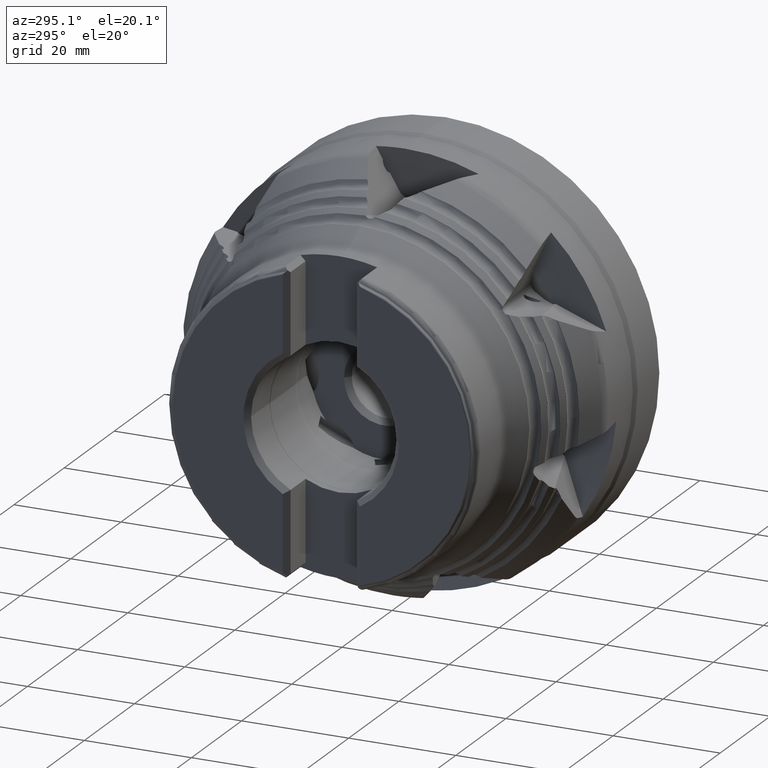
[diagram: clean part render]
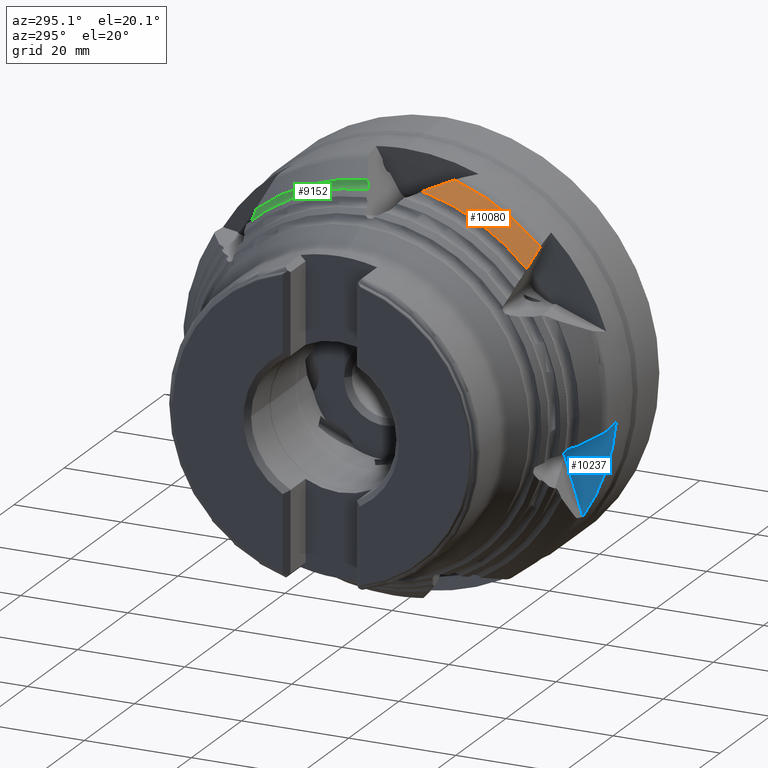
[diagram: same view with three faces highlighted in distinct colors, each labeled with its STEP entity id]
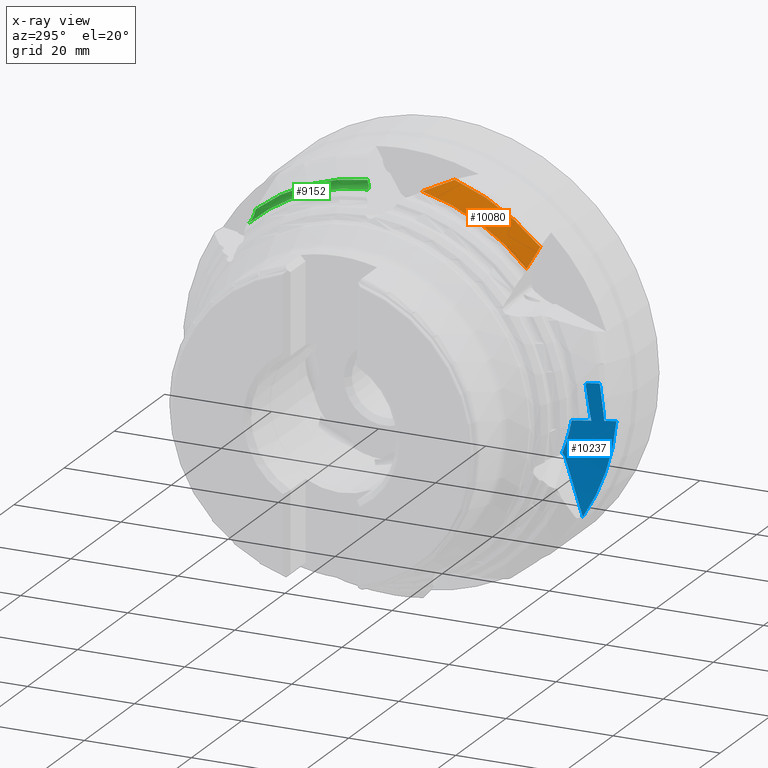
[diagram: x-ray of the same camera — body ghosted, the three highlighted faces saturated]
A machine part, auxiliary view with three faces highlighted in distinct colors.
The next image is the same camera in x-ray (body ghosted, the three faces saturated) — at least one of them is partly hidden behind the body in this view.
Their STEP definitions:

[orange] entity #10080 — the highlighted conical surface has half-angle 29.986 deg.
#84 = DIRECTION ( 'NONE',  ( 0.0000000000000000000, 0.0000000000000000000, -1.000000000000000000 ) ) ;
#95 = DIRECTION ( 'NONE',  ( 1.000000000000000000, -0.0000000000000000000, -0.0000000000000000000 ) ) ;
#96 = CARTESIAN_POINT ( 'NONE',  ( -19.75000000000000700, 0.0000000000000000000, 0.0000000000000000000 ) ) ;
#819 = CARTESIAN_POINT ( 'NONE',  ( -19.75000000000000400, -27.58003265146716000, 27.81905562916816500 ) ) ;
#1418 = ORIENTED_EDGE ( 'NONE', *, *, #9791, .F. ) ;
#1451 = ORIENTED_EDGE ( 'NONE', *, *, #9795, .T. ) ;
#1578 = ORIENTED_EDGE ( 'NONE', *, *, #7778, .F. ) ;
#4844 = EDGE_LOOP ( 'NONE', ( #1418, #8305, #1451, #1578 ) ) ;
#5798 = AXIS2_PLACEMENT_3D ( 'NONE', #11946, #11953, #11954 ) ;
#5802 = AXIS2_PLACEMENT_3D ( 'NONE', #11952, #11965, #11966 ) ;
#5929 = AXIS2_PLACEMENT_3D ( 'NONE', #96, #95, #84 ) ;
#6563 = CARTESIAN_POINT ( 'NONE',  ( -23.86015006379805600, -7.403215991136505600, 36.04942966323809400 ) ) ;
#6709 = CARTESIAN_POINT ( 'NONE',  ( -23.86015006379806600, -26.91248224293732600, 25.10153950616877300 ) ) ;
#6758 = CARTESIAN_POINT ( 'NONE',  ( -19.75000000000000400, -11.58782275345328100, 37.42032096320524200 ) ) ;
#7019 = VERTEX_POINT ( 'NONE', #6709 ) ;
#7205 = VERTEX_POINT ( 'NONE', #6563 ) ;
#7374 = VERTEX_POINT ( 'NONE', #6758 ) ;
#7778 = EDGE_CURVE ( 'NONE', #10555, #7019, #8044, .T. ) ;
#7802 = EDGE_CURVE ( 'NONE', #7374, #7205, #8057, .T. ) ;
#8044 = B_SPLINE_CURVE_WITH_KNOTS ( 'NONE', 3,
 ( #10351, #10461, #10425, #10451 ),
 .UNSPECIFIED., .F., .F.,
 ( 4, 4 ),
 ( 2.411546218608524900E-007, 0.004972549569596663000 ),
 .UNSPECIFIED. ) ;
#8057 = B_SPLINE_CURVE_WITH_KNOTS ( 'NONE', 3,
 ( #8822, #8767, #8720, #8790 ),
 .UNSPECIFIED., .F., .F.,
 ( 4, 4 ),
 ( 2.852776466389619600E-007, 0.006023873100405632500 ),
 .UNSPECIFIED. ) ;
#8305 = ORIENTED_EDGE ( 'NONE', *, *, #7802, .T. ) ;
#8720 = CARTESIAN_POINT ( 'NONE',  ( -22.53141329550126300, -8.827784818221108100, 36.53959895266671500 ) ) ;
#8767 = CARTESIAN_POINT ( 'NONE',  ( -21.15765343313340100, -10.21998675139884400, 36.99358093492305200 ) ) ;
#8790 = CARTESIAN_POINT ( 'NONE',  ( -23.86015006379805600, -7.403215991136505600, 36.04942966323809400 ) ) ;
#8822 = CARTESIAN_POINT ( 'NONE',  ( -19.75000000000000400, -11.58782275345328100, 37.42032096320524200 ) ) ;
#9791 = EDGE_CURVE ( 'NONE', #7374, #10555, #10958, .T. ) ;
#9795 = EDGE_CURVE ( 'NONE', #7205, #7019, #10963, .T. ) ;
#10080 = ADVANCED_FACE ( 'NONE', ( #11185 ), #11191, .T. ) ;
#10351 = CARTESIAN_POINT ( 'NONE',  ( -19.75000000000000400, -27.58003265146716000, 27.81905562916816500 ) ) ;
#10425 = CARTESIAN_POINT ( 'NONE',  ( -22.49496209051098500, -27.13884397067003100, 26.01378739927539000 ) ) ;
#10451 = CARTESIAN_POINT ( 'NONE',  ( -23.86015006379806600, -26.91248224293732600, 25.10153950616877300 ) ) ;
#10461 = CARTESIAN_POINT ( 'NONE',  ( -21.12458355822222700, -27.36110098582440700, 26.91919306142832700 ) ) ;
#10555 = VERTEX_POINT ( 'NONE', #819 ) ;
#10958 = CIRCLE ( 'NONE', #5798, 39.17343560571050200 ) ;
#10963 = CIRCLE ( 'NONE', #5802, 36.80175248620870600 ) ;
#11185 = FACE_OUTER_BOUND ( 'NONE', #4844, .T. ) ;
#11191 = CONICAL_SURFACE ( 'NONE', #5929, 39.17343560571050200, 0.5233591296218815800 ) ;
#11946 = CARTESIAN_POINT ( 'NONE',  ( -19.75000000000000700, 0.0000000000000000000, 0.0000000000000000000 ) ) ;
#11952 = CARTESIAN_POINT ( 'NONE',  ( -23.86015006379807000, 0.0000000000000000000, 0.0000000000000000000 ) ) ;
#11953 = DIRECTION ( 'NONE',  ( 1.000000000000000000, -0.0000000000000000000, -0.0000000000000000000 ) ) ;
#11954 = DIRECTION ( 'NONE',  ( 0.0000000000000000000, 0.0000000000000000000, -1.000000000000000000 ) ) ;
#11965 = DIRECTION ( 'NONE',  ( 1.000000000000000000, -0.0000000000000000000, -0.0000000000000000000 ) ) ;
#11966 = DIRECTION ( 'NONE',  ( 0.0000000000000000000, 0.0000000000000000000, -1.000000000000000000 ) ) ;

[blue] entity #10237 — the highlighted conical surface has half-angle 79.042 deg.
#588 = DIRECTION ( 'NONE',  ( 0.0000000000000000000, 0.0000000000000000000, 1.000000000000000000 ) ) ;
#589 = DIRECTION ( 'NONE',  ( -1.000000000000000000, 0.0000000000000000000, 0.0000000000000000000 ) ) ;
#590 = CARTESIAN_POINT ( 'NONE',  ( -13.02448214395804400, 0.0000000000000000000, 0.0000000000000000000 ) ) ;
#773 = CARTESIAN_POINT ( 'NONE',  ( -13.77643423833003800, -34.29959869290051700, -4.417358670342841800 ) ) ;
#820 = CARTESIAN_POINT ( 'NONE',  ( -13.15760050556952600, -29.06160355297153300, -11.85513599864433600 ) ) ;
#851 = CARTESIAN_POINT ( 'NONE',  ( -14.27498281250760900, -36.95437970158653200, -3.883290550801097300 ) ) ;
#855 = CARTESIAN_POINT ( 'NONE',  ( -14.07729255668942300, -36.05946085018911200, 2.362890575477805600 ) ) ;
#859 = CARTESIAN_POINT ( 'NONE',  ( -14.74297361145644000, -33.15292004178408500, -21.61167549504370200 ) ) ;
#866 = CARTESIAN_POINT ( 'NONE',  ( -14.22793209370539300, -36.81287012301073200, -2.741896255978092600 ) ) ;
#1011 = AXIS2_PLACEMENT_3D ( 'NONE', #590, #589, #588 ) ;
#1826 = CARTESIAN_POINT ( 'NONE',  ( -13.02448214395804800, -30.24973538759846600, -5.233315809483216600 ) ) ;
#1919 = CARTESIAN_POINT ( 'NONE',  ( -14.74297361145644000, -33.15292004178408500, -21.61167549504370200 ) ) ;
#1926 = CARTESIAN_POINT ( 'NONE',  ( -13.52397737000488600, -32.94991741642697700, -4.689021668062084200 ) ) ;
#1973 = CARTESIAN_POINT ( 'NONE',  ( -13.27309485430865400, -31.59999804057472200, -4.960965961377941500 ) ) ;
#2062 = CARTESIAN_POINT ( 'NONE',  ( -13.77643423833003800, -34.29959869290051700, -4.417358670342841800 ) ) ;
#2348 = VERTEX_POINT ( 'NONE', #2523 ) ;
#2478 = VERTEX_POINT ( 'NONE', #2520 ) ;
#2520 = CARTESIAN_POINT ( 'NONE',  ( -13.02448214395804300, -28.50013516981798700, -11.40948643382416300 ) ) ;
#2523 = CARTESIAN_POINT ( 'NONE',  ( -13.49811977225348900, -33.09808212211964900, 1.770465918649291900 ) ) ;
#2552 = B_SPLINE_CURVE_WITH_KNOTS ( 'NONE', 3,
 ( #10324, #10331, #10409, #10384 ),
 .UNSPECIFIED., .F., .F.,
 ( 4, 4 ),
 ( 2.127040790515733500E-005, 0.001648429250161663800 ),
 .UNSPECIFIED. ) ;
#2586 = B_SPLINE_CURVE_WITH_KNOTS ( 'NONE', 3,
 ( #8464, #8576, #8588, #8515 ),
 .UNSPECIFIED., .F., .F.,
 ( 4, 4 ),
 ( 0.005005773144576095700, 0.006157415878208439400 ),
 .UNSPECIFIED. ) ;
#2588 = B_SPLINE_CURVE_WITH_KNOTS ( 'NONE', 3,
 ( #8569, #8640, #8623, #8624 ),
 .UNSPECIFIED., .F., .F.,
 ( 4, 4 ),
 ( 0.001024325014583567800, 0.006186608032533345500 ),
 .UNSPECIFIED. ) ;
#2920 = CARTESIAN_POINT ( 'NONE',  ( -14.74297361145376300, -39.42990551906952100, -3.385731199631457000 ) ) ;
#2921 = CARTESIAN_POINT ( 'NONE',  ( -14.17765743232406100, -31.78157564317409700, -18.36861185009664900 ) ) ;
#2922 = CARTESIAN_POINT ( 'NONE',  ( -13.63903579503369900, -30.41571539305629200, -15.11894585858071200 ) ) ;
#2923 = CARTESIAN_POINT ( 'NONE',  ( -13.15760050556952600, -29.06160355297153300, -11.85513599864433600 ) ) ;
#2928 = CARTESIAN_POINT ( 'NONE',  ( -14.58655302210180700, -38.60479431882725300, -3.551508620386461900 ) ) ;
#2929 = CARTESIAN_POINT ( 'NONE',  ( -14.43052821812258600, -37.77962326144139400, -3.717356757625507300 ) ) ;
#2930 = CARTESIAN_POINT ( 'NONE',  ( -14.27498281250760900, -36.95437970158653200, -3.883290550801097300 ) ) ;
#3661 = CARTESIAN_POINT ( 'NONE',  ( -13.55799545217068000, -33.38624619555433500, 2.138345254129950600 ) ) ;
#3667 = CARTESIAN_POINT ( 'NONE',  ( -13.70994283081734900, -34.16270592516421800, 2.293663130348654500 ) ) ;
#3668 = CARTESIAN_POINT ( 'NONE',  ( -13.86198310472513900, -34.93915083502142200, 2.448964232729478900 ) ) ;
#3669 = CARTESIAN_POINT ( 'NONE',  ( -14.01409900351162500, -35.71558365515299700, 2.604251673997058700 ) ) ;
#3725 = CARTESIAN_POINT ( 'NONE',  ( -14.07729255668942300, -36.05946085018911200, 2.362890575477805600 ) ) ;
#3729 = CARTESIAN_POINT ( 'NONE',  ( -14.07595059452474800, -36.04733558688379000, 2.441929619133514700 ) ) ;
#3730 = CARTESIAN_POINT ( 'NONE',  ( -14.06831766956456600, -36.00278856593327200, 2.514261971994109500 ) ) ;
#3731 = CARTESIAN_POINT ( 'NONE',  ( -14.04477473638782700, -35.87452915700343700, 2.603497128787489100 ) ) ;
#3732 = CARTESIAN_POINT ( 'NONE',  ( -14.02905750019553500, -35.79193509414042000, 2.619522048059099300 ) ) ;
#3733 = CARTESIAN_POINT ( 'NONE',  ( -14.01409900351162500, -35.71558365515299700, 2.604251673997058700 ) ) ;
#3883 = CARTESIAN_POINT ( 'NONE',  ( -13.02448214395804300, -28.50013516981798700, -11.40948643382416300 ) ) ;
#3892 = CARTESIAN_POINT ( 'NONE',  ( -13.06842588183770500, -28.68285693743158800, -11.56375124406137900 ) ) ;
#3893 = CARTESIAN_POINT ( 'NONE',  ( -13.11280961394343700, -28.87002951100991800, -11.71227710975306700 ) ) ;
#3894 = CARTESIAN_POINT ( 'NONE',  ( -13.15760050556952600, -29.06160355297153300, -11.85513599864433600 ) ) ;
#4472 = ORIENTED_EDGE ( 'NONE', *, *, #7957, .F. ) ;
#4473 = ORIENTED_EDGE ( 'NONE', *, *, #9674, .T. ) ;
#4474 = ORIENTED_EDGE ( 'NONE', *, *, #7812, .T. ) ;
#4475 = ORIENTED_EDGE ( 'NONE', *, *, #7946, .T. ) ;
#4476 = ORIENTED_EDGE ( 'NONE', *, *, #7760, .F. ) ;
#4477 = ORIENTED_EDGE ( 'NONE', *, *, #7629, .F. ) ;
#4478 = ORIENTED_EDGE ( 'NONE', *, *, #7617, .T. ) ;
#4479 = ORIENTED_EDGE ( 'NONE', *, *, #9627, .F. ) ;
#4480 = ORIENTED_EDGE ( 'NONE', *, *, #9649, .T. ) ;
#4481 = ORIENTED_EDGE ( 'NONE', *, *, #7734, .F. ) ;
#4482 = ORIENTED_EDGE ( 'NONE', *, *, #7738, .F. ) ;
#4484 = ORIENTED_EDGE ( 'NONE', *, *, #7668, .F. ) ;
#4485 = ORIENTED_EDGE ( 'NONE', *, *, #7959, .T. ) ;
#4724 = EDGE_LOOP ( 'NONE', ( #4484, #4485, #4482, #4481, #4480, #4479, #4478, #4477, #4476, #4475, #4474, #4473, #4472 ) ) ;
#5114 = CIRCLE ( 'NONE', #5524, 39.57500000000001000 ) ;
#5183 = CIRCLE ( 'NONE', #5562, 30.69908932495415100 ) ;
#5524 = AXIS2_PLACEMENT_3D ( 'NONE', #8497, #8450, #8508 ) ;
#5562 = AXIS2_PLACEMENT_3D ( 'NONE', #8729, #8830, #8740 ) ;
#6030 = B_SPLINE_CURVE_WITH_KNOTS ( 'NONE', 3,
 ( #2062, #1926, #1973, #1826 ),
 .UNSPECIFIED., .F., .F.,
 ( 4, 4 ),
 ( 0.005322604038467463500, 0.009521719763578330400 ),
 .UNSPECIFIED. ) ;
#6040 = B_SPLINE_CURVE_WITH_KNOTS ( 'NONE', 3,
 ( #1919, #2921, #2922, #2923 ),
 .UNSPECIFIED., .F., .F.,
 ( 4, 4 ),
 ( 1.261559730348487700E-006, 0.01069902733394071900 ),
 .UNSPECIFIED. ) ;
#6042 = B_SPLINE_CURVE_WITH_KNOTS ( 'NONE', 3,
 ( #2920, #2928, #2929, #2930 ),
 .UNSPECIFIED., .F., .F.,
 ( 4, 4 ),
 ( 1.094497495789083800E-006, 0.002569126394225962300 ),
 .UNSPECIFIED. ) ;
#6085 = B_SPLINE_CURVE_WITH_KNOTS ( 'NONE', 3,
 ( #3661, #3667, #3668, #3669 ),
 .UNSPECIFIED., .F., .F.,
 ( 4, 4 ),
 ( 0.002834302171999550800, 0.005253168071601669800 ),
 .UNSPECIFIED. ) ;
#6090 = B_SPLINE_CURVE_WITH_KNOTS ( 'NONE', 3,
 ( #3725, #3729, #3730, #3731, #3732, #3733 ),
 .UNSPECIFIED., .F., .F.,
 ( 4, 2, 4 ),
 ( 0.0002141596756595487200, 0.0004507220710206366100, 0.0006872844663817245000 ),
 .UNSPECIFIED. ) ;
#6109 = B_SPLINE_CURVE_WITH_KNOTS ( 'NONE', 3,
 ( #3883, #3892, #3893, #3894 ),
 .UNSPECIFIED., .F., .F.,
 ( 4, 4 ),
 ( 2.759246602137219200E-017, 0.0007290890056114888500 ),
 .UNSPECIFIED. ) ;
#6440 = CARTESIAN_POINT ( 'NONE',  ( -14.74297361145376300, -39.42990551906952100, -3.385731199631457000 ) ) ;
#6505 = CARTESIAN_POINT ( 'NONE',  ( -13.55799545217068000, -33.38624619555433500, 2.138345254129950600 ) ) ;
#6757 = CARTESIAN_POINT ( 'NONE',  ( -14.01409900351162500, -35.71558365515299700, 2.604251673997058700 ) ) ;
#6760 = CARTESIAN_POINT ( 'NONE',  ( -13.02448214395804800, -30.24973538759846600, -5.233315809483216600 ) ) ;
#6780 = CARTESIAN_POINT ( 'NONE',  ( -13.66759250174636400, -33.90171496073549000, -2.843054393496436300 ) ) ;
#6880 = CARTESIAN_POINT ( 'NONE',  ( -13.55799545217068000, -33.38624619555433500, 2.138345254129950600 ) ) ;
#6936 = CARTESIAN_POINT ( 'NONE',  ( -13.58497904826015600, -33.57699883857317500, -1.316059790287869500 ) ) ;
#6949 = CARTESIAN_POINT ( 'NONE',  ( -13.66759250174636400, -33.90171496073549000, -2.843054393496436300 ) ) ;
#6952 = CARTESIAN_POINT ( 'NONE',  ( -13.50895163265000100, -33.19558500986373400, 0.9950723470244630100 ) ) ;
#6959 = CARTESIAN_POINT ( 'NONE',  ( -13.49692491181124000, -33.08732659730583900, 1.855999434570240000 ) ) ;
#6960 = CARTESIAN_POINT ( 'NONE',  ( -13.49811977225348900, -33.09808212211964900, 1.770465918649291900 ) ) ;
#6963 = CARTESIAN_POINT ( 'NONE',  ( -13.54170029152074400, -33.30297699969925400, 2.121688634138665400 ) ) ;
#6965 = CARTESIAN_POINT ( 'NONE',  ( -13.52613701258597900, -33.22528996748504700, 2.077347853959258000 ) ) ;
#6969 = CARTESIAN_POINT ( 'NONE',  ( -13.62180819039957500, -33.72817420802863400, -2.082722676804270400 ) ) ;
#6981 = CARTESIAN_POINT ( 'NONE',  ( -13.50351099966417200, -33.11626246864090500, 1.944577716662927000 ) ) ;
#6987 = CARTESIAN_POINT ( 'NONE',  ( -13.52856174768908600, -33.31072084680209100, 0.2226674977695846900 ) ) ;
#6990 = CARTESIAN_POINT ( 'NONE',  ( -13.49811977225348900, -33.09808212211964900, 1.770465918649291900 ) ) ;
#7038 = VERTEX_POINT ( 'NONE', #6505 ) ;
#7081 = VERTEX_POINT ( 'NONE', #6440 ) ;
#7346 = VERTEX_POINT ( 'NONE', #6780 ) ;
#7373 = VERTEX_POINT ( 'NONE', #6757 ) ;
#7375 = VERTEX_POINT ( 'NONE', #6760 ) ;
#7617 = EDGE_CURVE ( 'NONE', #7038, #2348, #10679, .T. ) ;
#7629 = EDGE_CURVE ( 'NONE', #7346, #2348, #10685, .T. ) ;
#7668 = EDGE_CURVE ( 'NONE', #7081, #10597, #5114, .T. ) ;
#7734 = EDGE_CURVE ( 'NONE', #10593, #10604, #2588, .T. ) ;
#7738 = EDGE_CURVE ( 'NONE', #10604, #10589, #2586, .T. ) ;
#7760 = EDGE_CURVE ( 'NONE', #10508, #7346, #2552, .T. ) ;
#7812 = EDGE_CURVE ( 'NONE', #7375, #2478, #5183, .T. ) ;
#7946 = EDGE_CURVE ( 'NONE', #10508, #7375, #6030, .T. ) ;
#7957 = EDGE_CURVE ( 'NONE', #10597, #10556, #6040, .T. ) ;
#7959 = EDGE_CURVE ( 'NONE', #7081, #10589, #6042, .T. ) ;
#8450 = DIRECTION ( 'NONE',  ( 1.000000000000000000, -0.0000000000000000000, -0.0000000000000000000 ) ) ;
#8464 = CARTESIAN_POINT ( 'NONE',  ( -14.22793209370539300, -36.81287012301073200, -2.741896255978092600 ) ) ;
#8497 = CARTESIAN_POINT ( 'NONE',  ( -14.74297361145644000, 0.0000000000000000000, 0.0000000000000000000 ) ) ;
#8508 = DIRECTION ( 'NONE',  ( 0.0000000000000000000, 0.0000000000000000000, -1.000000000000000000 ) ) ;
#8515 = CARTESIAN_POINT ( 'NONE',  ( -14.27498281250760900, -36.95437970158653200, -3.883290550801097300 ) ) ;
#8569 = CARTESIAN_POINT ( 'NONE',  ( -14.07729255668942300, -36.05946085018911200, 2.362890575477805600 ) ) ;
#8576 = CARTESIAN_POINT ( 'NONE',  ( -14.24378641949003700, -36.86671778335946200, -3.121395352298161000 ) ) ;
#8588 = CARTESIAN_POINT ( 'NONE',  ( -14.25956558874827400, -36.91440234522425400, -3.501782277639602400 ) ) ;
#8623 = CARTESIAN_POINT ( 'NONE',  ( -14.15681138917197900, -36.57131563539028500, -1.039506418233116400 ) ) ;
#8624 = CARTESIAN_POINT ( 'NONE',  ( -14.22793209370539300, -36.81287012301073200, -2.741896255978092600 ) ) ;
#8640 = CARTESIAN_POINT ( 'NONE',  ( -14.10616928817280600, -36.32037578642938800, 0.6621054859804544900 ) ) ;
#8729 = CARTESIAN_POINT ( 'NONE',  ( -13.02448214395804400, 0.0000000000000000000, 0.0000000000000000000 ) ) ;
#8740 = DIRECTION ( 'NONE',  ( 0.0000000000000000000, 0.0000000000000000000, -1.000000000000000000 ) ) ;
#8830 = DIRECTION ( 'NONE',  ( 1.000000000000000000, -0.0000000000000000000, -0.0000000000000000000 ) ) ;
#9627 = EDGE_CURVE ( 'NONE', #7038, #7373, #6085, .T. ) ;
#9649 = EDGE_CURVE ( 'NONE', #10593, #7373, #6090, .T. ) ;
#9674 = EDGE_CURVE ( 'NONE', #2478, #10556, #6109, .T. ) ;
#10237 = ADVANCED_FACE ( 'NONE', ( #11487 ), #11490, .F. ) ;
#10324 = CARTESIAN_POINT ( 'NONE',  ( -13.77643423833003800, -34.29959869290051700, -4.417358670342841800 ) ) ;
#10331 = CARTESIAN_POINT ( 'NONE',  ( -13.73548704368104500, -34.15350256309975700, -3.896030819942049900 ) ) ;
#10384 = CARTESIAN_POINT ( 'NONE',  ( -13.66759250174636400, -33.90171496073549000, -2.843054393496436300 ) ) ;
#10409 = CARTESIAN_POINT ( 'NONE',  ( -13.69937987415682600, -34.02220174698201300, -3.370941495497723000 ) ) ;
#10508 = VERTEX_POINT ( 'NONE', #773 ) ;
#10556 = VERTEX_POINT ( 'NONE', #820 ) ;
#10589 = VERTEX_POINT ( 'NONE', #851 ) ;
#10593 = VERTEX_POINT ( 'NONE', #855 ) ;
#10597 = VERTEX_POINT ( 'NONE', #859 ) ;
#10604 = VERTEX_POINT ( 'NONE', #866 ) ;
#10679 = B_SPLINE_CURVE_WITH_KNOTS ( 'NONE', 3,
 ( #6880, #6963, #6965, #6981, #6959, #6960 ),
 .UNSPECIFIED., .F., .F.,
 ( 4, 2, 4 ),
 ( 0.0009646775267666020700, 0.001221314808110774300, 0.001477952089454946300 ),
 .UNSPECIFIED. ) ;
#10685 = B_SPLINE_CURVE_WITH_KNOTS ( 'NONE', 3,
 ( #6949, #6969, #6936, #6987, #6952, #6990 ),
 .UNSPECIFIED., .F., .F.,
 ( 4, 2, 4 ),
 ( 0.001648429250161663800, 0.003992075213803166500, 0.006335721177444669100 ),
 .UNSPECIFIED. ) ;
#11487 = FACE_OUTER_BOUND ( 'NONE', #4724, .T. ) ;
#11490 = CONICAL_SURFACE ( 'NONE', #1011, 30.69908932495415100, 1.379549612654531500 ) ;

[green] entity #9152 — the highlighted toroidal blend (fillet) surface has major radius 36.9989 mm and minor (blend) radius 1.5 mm.
#781 = CARTESIAN_POINT ( 'NONE',  ( -23.95538848306704700, 23.61489016436727800, 28.05671488988939900 ) ) ;
#796 = CARTESIAN_POINT ( 'NONE',  ( -25.41936529679498200, 2.000734644150334900, 35.44242498977898500 ) ) ;
#803 = CARTESIAN_POINT ( 'NONE',  ( -23.95538848306712500, 2.770793477824475400, 36.56726666556979000 ) ) ;
#810 = CARTESIAN_POINT ( 'NONE',  ( -25.41936529679572800, 24.22206260539466900, 25.95111002275158200 ) ) ;
#2085 = ORIENTED_EDGE ( 'NONE', *, *, #10034, .F. ) ;
#3437 = DIRECTION ( 'NONE',  ( 1.000000000000000000, -0.0000000000000000000, -0.0000000000000000000 ) ) ;
#3450 = CARTESIAN_POINT ( 'NONE',  ( -25.41936529679573200, 0.0000000000000000000, 0.0000000000000000000 ) ) ;
#3452 = DIRECTION ( 'NONE',  ( 0.0000000000000000000, 0.0000000000000000000, -1.000000000000000000 ) ) ;
#4668 = EDGE_LOOP ( 'NONE', ( #10702, #8710, #8708, #2085 ) ) ;
#5733 = AXIS2_PLACEMENT_3D ( 'NONE', #3450, #3437, #3452 ) ;
#5893 = AXIS2_PLACEMENT_3D ( 'NONE', #12819, #12820, #12821 ) ;
#5899 = AXIS2_PLACEMENT_3D ( 'NONE', #12892, #12893, #12894 ) ;
#8708 = ORIENTED_EDGE ( 'NONE', *, *, #9976, .F. ) ;
#8710 = ORIENTED_EDGE ( 'NONE', *, *, #10024, .T. ) ;
#9152 = ADVANCED_FACE ( 'NONE', ( #10833 ), #10837, .F. ) ;
#9976 = EDGE_CURVE ( 'NONE', #10538, #10531, #11676, .T. ) ;
#10024 = EDGE_CURVE ( 'NONE', #10545, #10531, #11141, .T. ) ;
#10029 = EDGE_CURVE ( 'NONE', #10516, #10545, #11699, .T. ) ;
#10034 = EDGE_CURVE ( 'NONE', #10516, #10538, #11148, .T. ) ;
#10516 = VERTEX_POINT ( 'NONE', #781 ) ;
#10531 = VERTEX_POINT ( 'NONE', #796 ) ;
#10538 = VERTEX_POINT ( 'NONE', #803 ) ;
#10545 = VERTEX_POINT ( 'NONE', #810 ) ;
#10702 = ORIENTED_EDGE ( 'NONE', *, *, #10029, .T. ) ;
#10833 = FACE_OUTER_BOUND ( 'NONE', #4668, .T. ) ;
#10837 = TOROIDAL_SURFACE ( 'NONE', #5733, 36.99885108383955400, 1.499999999999996000 ) ;
#11141 = CIRCLE ( 'NONE', #5893, 35.49885108383956100 ) ;
#11148 = CIRCLE ( 'NONE', #5899, 36.67209140324112600 ) ;
#11676 = B_SPLINE_CURVE_WITH_KNOTS ( 'NONE', 3,
 ( #12556, #12577, #12587, #12588, #12589, #12590, #12591, #12592, #12593, #12594, #12595, #12596 ),
 .UNSPECIFIED., .F., .F.,
 ( 4, 2, 2, 2, 2, 4 ),
 ( 9.813620449795929700E-007, 0.0005356497952117560600, 0.001070318228378532700, 0.001604986661545309100, 0.001872320878128697600, 0.002139655094712086100 ),
 .UNSPECIFIED. ) ;
#11699 = B_SPLINE_CURVE_WITH_KNOTS ( 'NONE', 3,
 ( #12832, #12835, #12836, #12837, #12838, #12839, #12840, #12841, #12842, #12843, #12844, #12845 ),
 .UNSPECIFIED., .F., .F.,
 ( 4, 2, 2, 2, 2, 4 ),
 ( 1.332310849311447200E-006, 0.0006862578829651615000, 0.001371183455081011700, 0.002056109027196861500, 0.002398571813254789000, 0.002741034599312716500 ),
 .UNSPECIFIED. ) ;
#12556 = CARTESIAN_POINT ( 'NONE',  ( -23.95538848306712500, 2.770793477824475400, 36.56726666556979000 ) ) ;
#12577 = CARTESIAN_POINT ( 'NONE',  ( -23.99175787802681700, 2.689395238415990300, 36.41002202067340200 ) ) ;
#12587 = CARTESIAN_POINT ( 'NONE',  ( -24.05350223309777700, 2.609126402439857700, 36.26334190031015200 ) ) ;
#12588 = CARTESIAN_POINT ( 'NONE',  ( -24.22680902246970200, 2.450806062433303500, 35.99072274914242800 ) ) ;
#12589 = CARTESIAN_POINT ( 'NONE',  ( -24.33613572942134000, 2.375265673920732700, 35.86927392099319400 ) ) ;
#12590 = CARTESIAN_POINT ( 'NONE',  ( -24.59508457510323300, 2.236243486331145600, 35.66446842118517000 ) ) ;
#12591 = CARTESIAN_POINT ( 'NONE',  ( -24.74427331342138800, 2.173308885633222300, 35.58210763439018400 ) ) ;
#12592 = CARTESIAN_POINT ( 'NONE',  ( -24.98637007711138100, 2.095217700655734200, 35.49836804703326000 ) ) ;
#12593 = CARTESIAN_POINT ( 'NONE',  ( -25.07170712104502300, 2.071451795897564000, 35.47665946459518000 ) ) ;
#12594 = CARTESIAN_POINT ( 'NONE',  ( -25.24392350005223700, 2.031004062562837400, 35.44845210452770300 ) ) ;
#12595 = CARTESIAN_POINT ( 'NONE',  ( -25.33109613446276500, 2.014139219863342300, 35.44166829779404500 ) ) ;
#12596 = CARTESIAN_POINT ( 'NONE',  ( -25.41936529679498200, 2.000734644150334900, 35.44242498977898500 ) ) ;
#12819 = CARTESIAN_POINT ( 'NONE',  ( -25.41936529679573200, 0.0000000000000000000, 0.0000000000000000000 ) ) ;
#12820 = DIRECTION ( 'NONE',  ( 1.000000000000000000, -0.0000000000000000000, -0.0000000000000000000 ) ) ;
#12821 = DIRECTION ( 'NONE',  ( 0.0000000000000000000, 0.0000000000000000000, -1.000000000000000000 ) ) ;
#12832 = CARTESIAN_POINT ( 'NONE',  ( -23.95538848306704700, 23.61489016436727800, 28.05671488988939900 ) ) ;
#12835 = CARTESIAN_POINT ( 'NONE',  ( -23.98970559853548700, 23.64577714056692400, 27.82975515358616300 ) ) ;
#12836 = CARTESIAN_POINT ( 'NONE',  ( -24.04636562833726300, 23.68213687057283300, 27.61111739264757500 ) ) ;
#12837 = CARTESIAN_POINT ( 'NONE',  ( -24.20078741142181800, 23.76492393458061500, 27.18915086426827400 ) ) ;
#12838 = CARTESIAN_POINT ( 'NONE',  ( -24.30004911611392200, 23.81198595767109100, 26.98353042056443800 ) ) ;
#12839 = CARTESIAN_POINT ( 'NONE',  ( -24.53985684981559600, 23.91457398762101900, 26.60524465826218300 ) ) ;
#12840 = CARTESIAN_POINT ( 'NONE',  ( -24.68106695129805700, 23.97051642990430800, 26.43012040379413800 ) ) ;
#12841 = CARTESIAN_POINT ( 'NONE',  ( -24.93097292256352700, 24.06133520119246300, 26.20748190967563200 ) ) ;
#12842 = CARTESIAN_POINT ( 'NONE',  ( -25.01961228045701100, 24.09237994837291900, 26.14096801124550100 ) ) ;
#12843 = CARTESIAN_POINT ( 'NONE',  ( -25.21066061014495600, 24.15646063230781600, 26.02780231581136400 ) ) ;
#12844 = CARTESIAN_POINT ( 'NONE',  ( -25.31312084857684000, 24.18947573289784700, 25.98152572616616100 ) ) ;
#12845 = CARTESIAN_POINT ( 'NONE',  ( -25.41936529679572800, 24.22206260539466900, 25.95111002275158200 ) ) ;
#12892 = CARTESIAN_POINT ( 'NONE',  ( -23.95538848306704300, 0.0000000000000000000, 0.0000000000000000000 ) ) ;
#12893 = DIRECTION ( 'NONE',  ( 1.000000000000000000, -0.0000000000000000000, -0.0000000000000000000 ) ) ;
#12894 = DIRECTION ( 'NONE',  ( 0.0000000000000000000, 0.0000000000000000000, -1.000000000000000000 ) ) ;